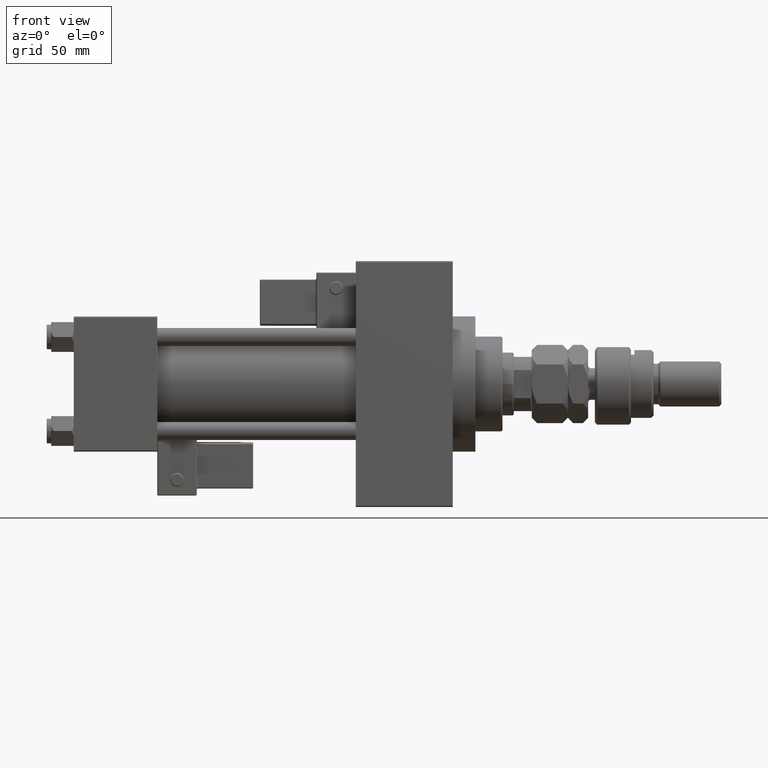
[diagram: clean part render]
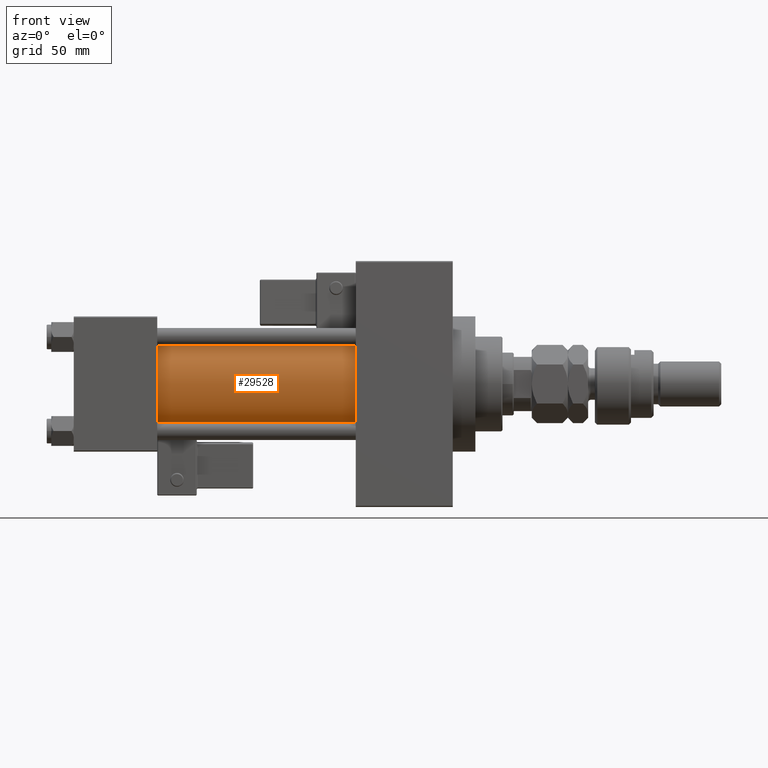
[diagram: same view with one face highlighted and labeled with its STEP entity id]
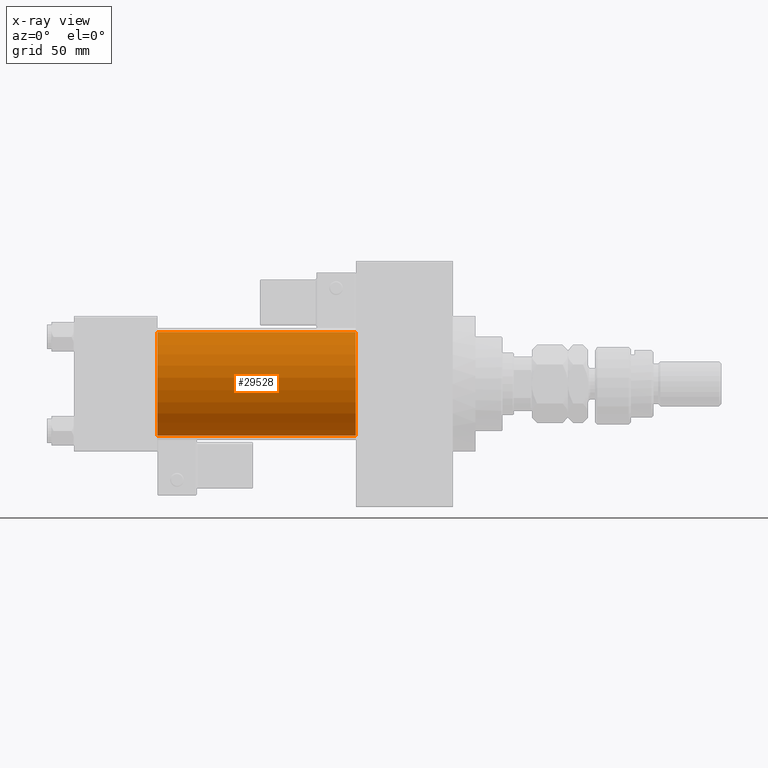
[diagram: x-ray of the same camera — body ghosted, the highlighted face saturated]
A machine part, front view. The second image highlights one B-rep face of the part: STEP entity #29528.
The next image is the same camera in x-ray: the body ghosted, the highlighted face saturated — about 0% of this face is hidden behind the body in this view.
In plain terms, the highlighted cylindrical surface (partial cylindrical patch) has radius 23 mm, axis along (-1, -0, -0).
Its self-contained STEP definition (entity closure, byte-faithful):
#112 = DIRECTION ( 'NONE',  ( 1.000000000000000000, 0.000000000000000000, 0.000000000000000000 ) ) ;
#541 = CIRCLE ( 'NONE', #48095, 23.00000000000000000 ) ;
#2534 = DIRECTION ( 'NONE',  ( -1.000000000000000000, -0.000000000000000000, -0.000000000000000000 ) ) ;
#4521 = AXIS2_PLACEMENT_3D ( 'NONE', #10973, #43388, #23194 ) ;
#5767 = ORIENTED_EDGE ( 'NONE', *, *, #15447, .T. ) ;
#6274 = CARTESIAN_POINT ( 'NONE',  ( 125.0000000000000000, 2.146024240737016609E-16, -23.00000000000000000 ) ) ;
#8489 = VECTOR ( 'NONE', #51495, 1000.000000000000000 ) ;
#8849 = AXIS2_PLACEMENT_3D ( 'NONE', #23525, #112, #24308 ) ;
#10945 = ORIENTED_EDGE ( 'NONE', *, *, #46891, .T. ) ;
#10973 = CARTESIAN_POINT ( 'NONE',  ( 125.0000000000000000, -2.602085213965210642E-15, 0.000000000000000000 ) ) ;
#11442 = CARTESIAN_POINT ( 'NONE',  ( 37.00000000000000711, 2.146024240737016609E-16, -23.00000000000000000 ) ) ;
#14560 = CARTESIAN_POINT ( 'NONE',  ( 125.0000000000000000, -2.602085213965210642E-15, 23.00000000000000000 ) ) ;
#14696 = CYLINDRICAL_SURFACE ( 'NONE', #4521, 23.00000000000000000 ) ;
#14852 = ORIENTED_EDGE ( 'NONE', *, *, #30375, .F. ) ;
#15447 = EDGE_CURVE ( 'NONE', #33919, #44095, #541, .T. ) ;
#18659 = VERTEX_POINT ( 'NONE', #24987 ) ;
#20848 = EDGE_LOOP ( 'NONE', ( #14852, #50309, #10945, #5767 ) ) ;
#23194 = DIRECTION ( 'NONE',  ( 0.000000000000000000, 0.000000000000000000, 1.000000000000000000 ) ) ;
#23525 = CARTESIAN_POINT ( 'NONE',  ( 125.0000000000000000, -2.602085213965210642E-15, 0.000000000000000000 ) ) ;
#24308 = DIRECTION ( 'NONE',  ( 0.000000000000000000, 0.000000000000000000, -1.000000000000000000 ) ) ;
#24314 = DIRECTION ( 'NONE',  ( 1.000000000000000000, -0.000000000000000000, 0.000000000000000000 ) ) ;
#24551 = CARTESIAN_POINT ( 'NONE',  ( 125.0000000000000000, 2.146024240737016609E-16, -23.00000000000000000 ) ) ;
#24987 = CARTESIAN_POINT ( 'NONE',  ( 125.0000000000000000, -2.602085213965210642E-15, 23.00000000000000000 ) ) ;
#29528 = ADVANCED_FACE ( 'NONE', ( #51104 ), #14696, .T. ) ;
#30375 = EDGE_CURVE ( 'NONE', #40013, #44095, #42668, .T. ) ;
#31757 = CIRCLE ( 'NONE', #8849, 23.00000000000000000 ) ;
#32563 = VECTOR ( 'NONE', #2534, 1000.000000000000000 ) ;
#33808 = EDGE_CURVE ( 'NONE', #18659, #40013, #31757, .T. ) ;
#33919 = VERTEX_POINT ( 'NONE', #47715 ) ;
#38740 = LINE ( 'NONE', #14560, #8489 ) ;
#40013 = VERTEX_POINT ( 'NONE', #24551 ) ;
#41306 = CARTESIAN_POINT ( 'NONE',  ( 37.00000000000000711, -2.602085213965210642E-15, 0.000000000000000000 ) ) ;
#42668 = LINE ( 'NONE', #6274, #32563 ) ;
#43388 = DIRECTION ( 'NONE',  ( -1.000000000000000000, -0.000000000000000000, -0.000000000000000000 ) ) ;
#44095 = VERTEX_POINT ( 'NONE', #11442 ) ;
#46891 = EDGE_CURVE ( 'NONE', #18659, #33919, #38740, .T. ) ;
#47715 = CARTESIAN_POINT ( 'NONE',  ( 37.00000000000000711, -2.602085213965210642E-15, 23.00000000000000000 ) ) ;
#48095 = AXIS2_PLACEMENT_3D ( 'NONE', #41306, #24314, #48784 ) ;
#48784 = DIRECTION ( 'NONE',  ( 0.000000000000000000, 0.000000000000000000, 1.000000000000000000 ) ) ;
#50309 = ORIENTED_EDGE ( 'NONE', *, *, #33808, .F. ) ;
#51104 = FACE_OUTER_BOUND ( 'NONE', #20848, .T. ) ;
#51495 = DIRECTION ( 'NONE',  ( -1.000000000000000000, -0.000000000000000000, -0.000000000000000000 ) ) ;